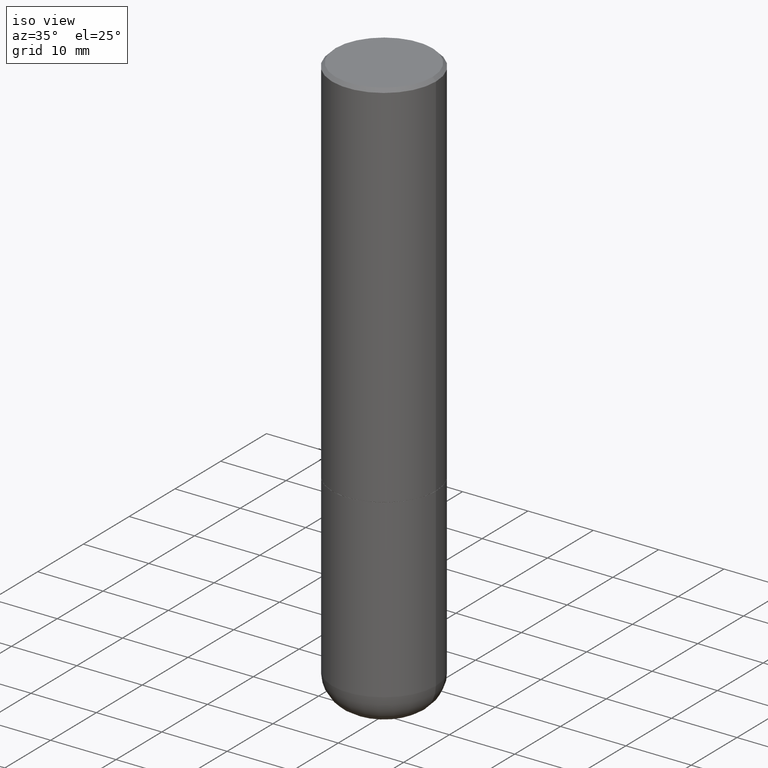
[diagram: clean part render]
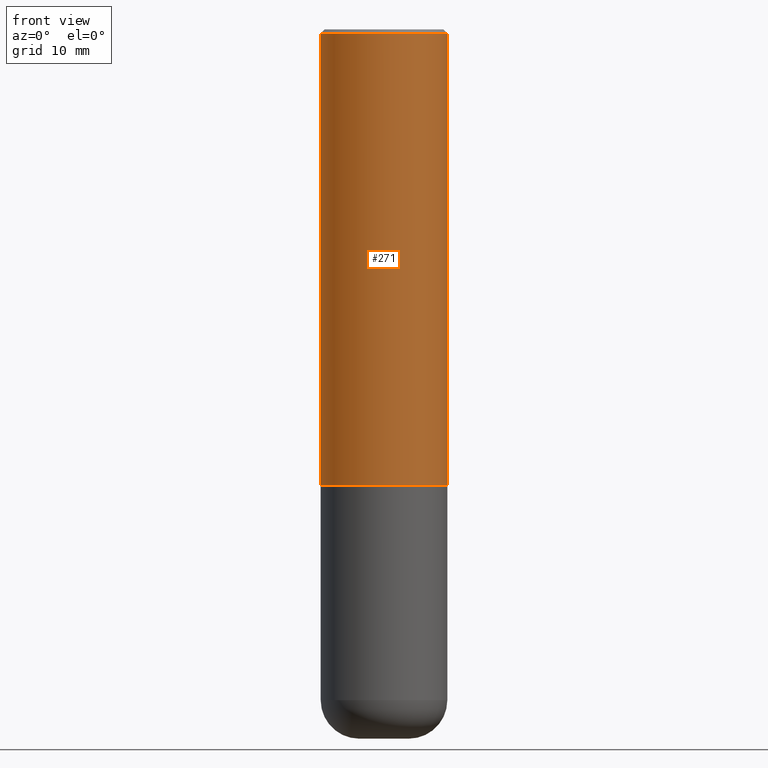
[diagram: tour spotlight — one face highlighted and labeled with its STEP entity id]
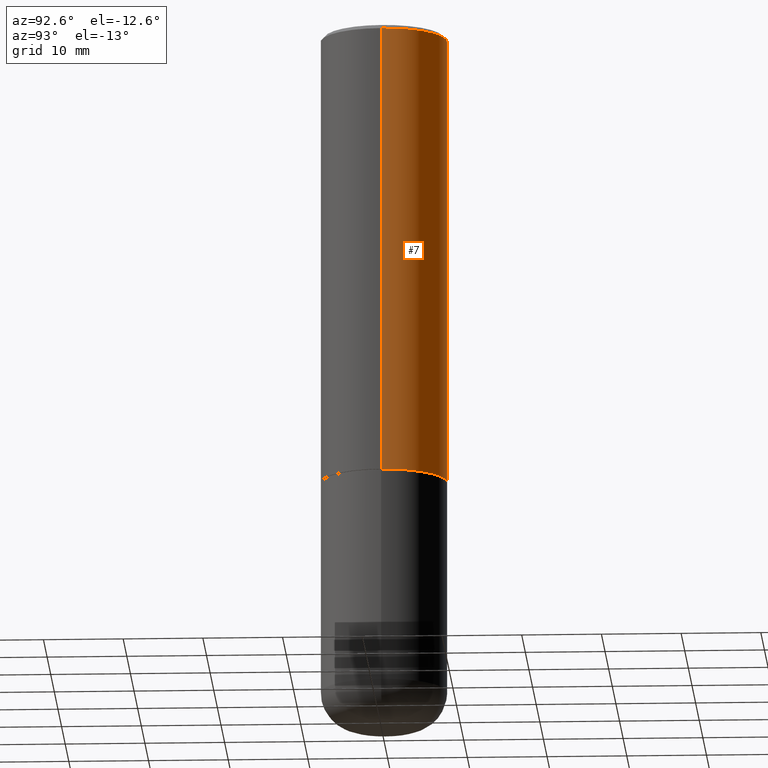
[diagram: tour spotlight — one face highlighted and labeled with its STEP entity id]
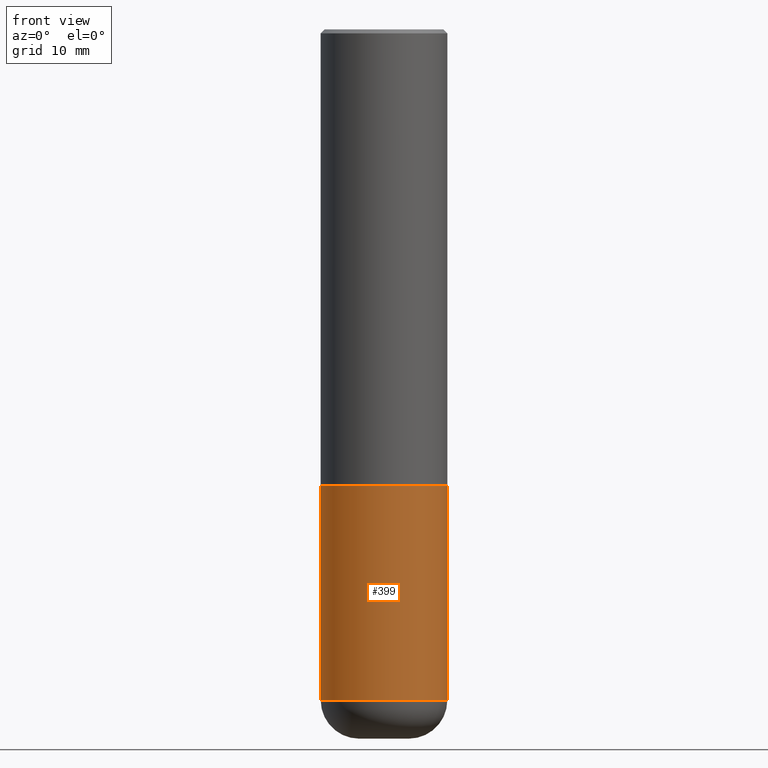
[diagram: tour spotlight — one face highlighted and labeled with its STEP entity id]
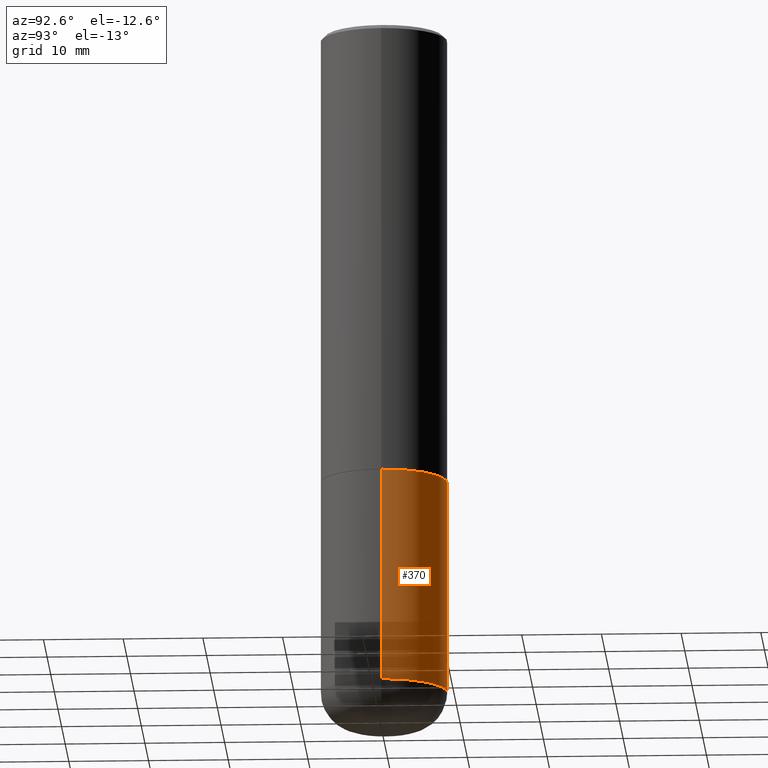
[diagram: tour spotlight — one face highlighted and labeled with its STEP entity id]
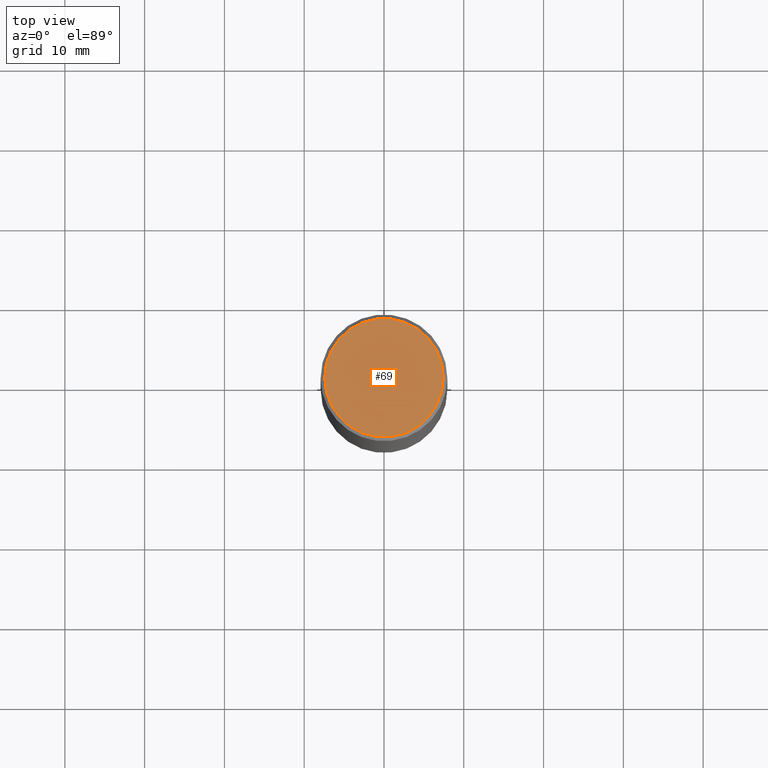
[diagram: tour spotlight — one face highlighted and labeled with its STEP entity id]
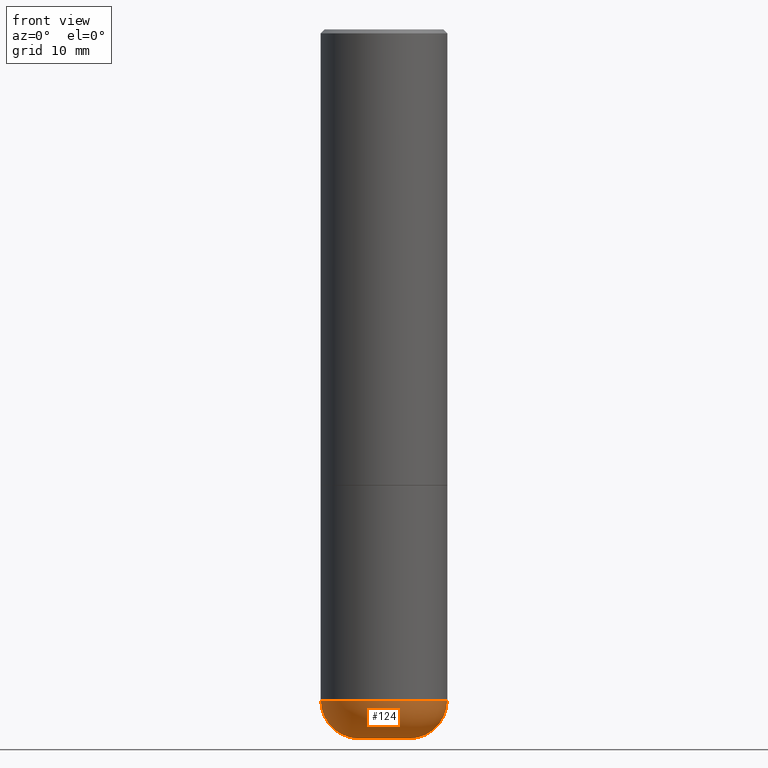
[diagram: tour spotlight — one face highlighted and labeled with its STEP entity id]
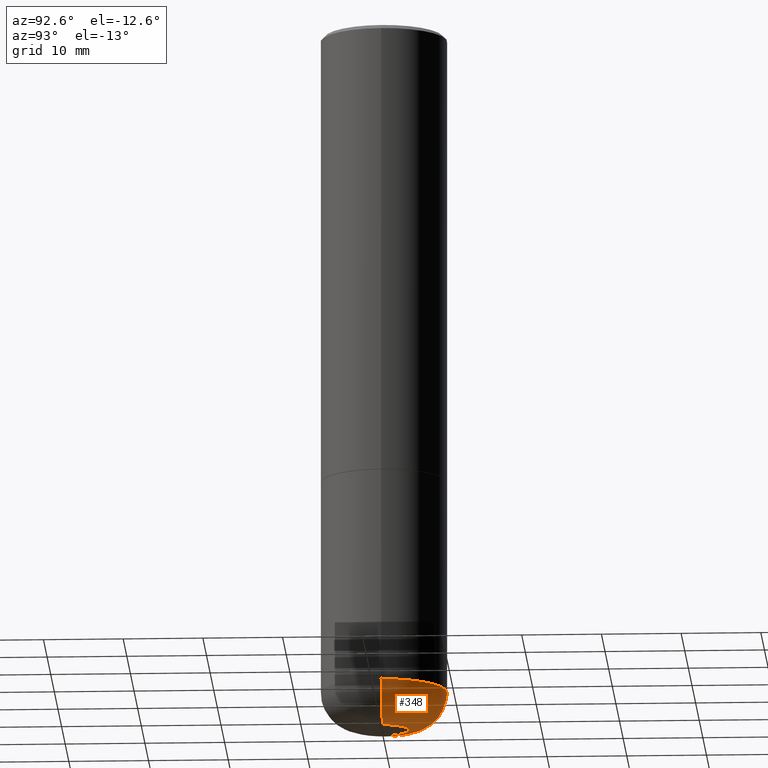
[diagram: tour spotlight — one face highlighted and labeled with its STEP entity id]
A machine part: a face-by-face anatomy tour. The part has 14 B-rep faces; the first image is the clean iso view, then the 7 largest visible faces are spotlighted one at a time (largest first), each with its STEP entity span.

Face 1 — front view, entity #271. In plain terms, the highlighted cylindrical surface (partial cylindrical patch) has radius 7.9375 mm, axis along (-0, 0, 1).
Definition (entity closure, byte-faithful):
#2 = DIRECTION ( 'NONE',  ( -2.445468806185136597E-29, 3.491481338843145583E-15, 1.000000000000000000 ) ) ;
#11 = FACE_OUTER_BOUND ( 'NONE', #78, .T. ) ;
#27 = CARTESIAN_POINT ( 'NONE',  ( 0.3125000000000002220, -1.003451736783519379E-14, -2.248999999999999666 ) ) ;
#31 = CIRCLE ( 'NONE', #144, 0.3125000000000002220 ) ;
#37 = DIRECTION ( 'NONE',  ( -2.445468806185136597E-29, 3.491481338843145583E-15, 1.000000000000000000 ) ) ;
#60 = AXIS2_PLACEMENT_3D ( 'NONE', #337, #37, #303 ) ;
#78 = EDGE_LOOP ( 'NONE', ( #122, #404, #340, #82 ) ) ;
#82 = ORIENTED_EDGE ( 'NONE', *, *, #188, .F. ) ;
#83 = LINE ( 'NONE', #220, #195 ) ;
#86 = VERTEX_POINT ( 'NONE', #199 ) ;
#114 = EDGE_CURVE ( 'NONE', #350, #119, #31, .T. ) ;
#119 = VERTEX_POINT ( 'NONE', #27 ) ;
#122 = ORIENTED_EDGE ( 'NONE', *, *, #413, .F. ) ;
#128 = CARTESIAN_POINT ( 'NONE',  ( 0.3124999999999998890, -2.213735251080466123E-15, -0.02000000000000006981 ) ) ;
#131 = CARTESIAN_POINT ( 'NONE',  ( 5.499859345110371740E-29, -7.852341531058233864E-15, -2.248999999999999666 ) ) ;
#138 = CARTESIAN_POINT ( 'NONE',  ( 0.000000000000000000, 0.000000000000000000, 0.000000000000000000 ) ) ;
#141 = CARTESIAN_POINT ( 'NONE',  ( 0.3125000000000000000, -2.182175836776958347E-15, 1.523805242436230075E-29 ) ) ;
#142 = VERTEX_POINT ( 'NONE', #128 ) ;
#144 = AXIS2_PLACEMENT_3D ( 'NONE', #131, #2, #267 ) ;
#179 = DIRECTION ( 'NONE',  ( -2.445468806185136597E-29, 3.491481338843145583E-15, 1.000000000000000000 ) ) ;
#188 = EDGE_CURVE ( 'NONE', #86, #142, #256, .T. ) ;
#195 = VECTOR ( 'NONE', #216, 39.37007874015748143 ) ;
#199 = CARTESIAN_POINT ( 'NONE',  ( -0.3124999999999998890, 2.112346210000094260E-15, -0.02000000000000006981 ) ) ;
#216 = DIRECTION ( 'NONE',  ( -2.445468806185136877E-29, 3.491481338843145188E-15, 1.000000000000000000 ) ) ;
#220 = CARTESIAN_POINT ( 'NONE',  ( -0.3125000000000000000, 2.220446049250313081E-15, -1.537167215704658232E-29 ) ) ;
#247 = CARTESIAN_POINT ( 'NONE',  ( -0.3125000000000002220, -1.740639529667230767E-15, -2.248999999999999666 ) ) ;
#256 = CIRCLE ( 'NONE', #60, 0.3124999999999998890 ) ;
#258 = VECTOR ( 'NONE', #305, 39.37007874015748143 ) ;
#267 = DIRECTION ( 'NONE',  ( 1.000000000000000000, -6.982962677686266711E-15, 0.000000000000000000 ) ) ;
#271 = ADVANCED_FACE ( 'NONE', ( #11 ), #333, .T. ) ;
#303 = DIRECTION ( 'NONE',  ( 1.000000000000000000, -6.982962677686266711E-15, 0.000000000000000000 ) ) ;
#305 = DIRECTION ( 'NONE',  ( -2.445468806185136877E-29, 3.491481338843145188E-15, 1.000000000000000000 ) ) ;
#312 = EDGE_CURVE ( 'NONE', #119, #142, #361, .T. ) ;
#333 = CYLINDRICAL_SURFACE ( 'NONE', #403, 0.3125000000000000000 ) ;
#337 = CARTESIAN_POINT ( 'NONE',  ( 4.890937612370289799E-31, -6.982962677686315028E-17, -0.02000000000000006981 ) ) ;
#340 = ORIENTED_EDGE ( 'NONE', *, *, #312, .T. ) ;
#350 = VERTEX_POINT ( 'NONE', #247 ) ;
#361 = LINE ( 'NONE', #141, #258 ) ;
#396 = DIRECTION ( 'NONE',  ( 1.000000000000000000, -6.982962677686266711E-15, 4.876176775795936353E-29 ) ) ;
#403 = AXIS2_PLACEMENT_3D ( 'NONE', #138, #179, #396 ) ;
#404 = ORIENTED_EDGE ( 'NONE', *, *, #114, .T. ) ;
#413 = EDGE_CURVE ( 'NONE', #350, #86, #83, .T. ) ;

Face 2 — auxiliary view, entity #7. In plain terms, the highlighted cylindrical surface (partial cylindrical patch) has radius 7.9375 mm, axis along (-0, 0, 1).
Definition (entity closure, byte-faithful):
#3 = EDGE_CURVE ( 'NONE', #142, #86, #51, .T. ) ;
#7 = ADVANCED_FACE ( 'NONE', ( #29 ), #354, .T. ) ;
#9 = EDGE_LOOP ( 'NONE', ( #19, #38, #222, #56 ) ) ;
#19 = ORIENTED_EDGE ( 'NONE', *, *, #265, .T. ) ;
#27 = CARTESIAN_POINT ( 'NONE',  ( 0.3125000000000002220, -1.003451736783519379E-14, -2.248999999999999666 ) ) ;
#29 = FACE_OUTER_BOUND ( 'NONE', #9, .T. ) ;
#38 = ORIENTED_EDGE ( 'NONE', *, *, #413, .T. ) ;
#51 = CIRCLE ( 'NONE', #269, 0.3124999999999998890 ) ;
#56 = ORIENTED_EDGE ( 'NONE', *, *, #312, .F. ) ;
#83 = LINE ( 'NONE', #220, #195 ) ;
#86 = VERTEX_POINT ( 'NONE', #199 ) ;
#105 = CARTESIAN_POINT ( 'NONE',  ( 5.499859345110371740E-29, -7.852341531058233864E-15, -2.248999999999999666 ) ) ;
#119 = VERTEX_POINT ( 'NONE', #27 ) ;
#128 = CARTESIAN_POINT ( 'NONE',  ( 0.3124999999999998890, -2.213735251080466123E-15, -0.02000000000000006981 ) ) ;
#141 = CARTESIAN_POINT ( 'NONE',  ( 0.3125000000000000000, -2.182175836776958347E-15, 1.523805242436230075E-29 ) ) ;
#142 = VERTEX_POINT ( 'NONE', #128 ) ;
#163 = CARTESIAN_POINT ( 'NONE',  ( 4.890937612370289799E-31, -6.982962677686315028E-17, -0.02000000000000006981 ) ) ;
#187 = AXIS2_PLACEMENT_3D ( 'NONE', #105, #268, #394 ) ;
#193 = DIRECTION ( 'NONE',  ( -2.445468806185136597E-29, 3.491481338843145583E-15, 1.000000000000000000 ) ) ;
#195 = VECTOR ( 'NONE', #216, 39.37007874015748143 ) ;
#196 = CARTESIAN_POINT ( 'NONE',  ( 0.000000000000000000, 0.000000000000000000, 0.000000000000000000 ) ) ;
#199 = CARTESIAN_POINT ( 'NONE',  ( -0.3124999999999998890, 2.112346210000094260E-15, -0.02000000000000006981 ) ) ;
#216 = DIRECTION ( 'NONE',  ( -2.445468806185136877E-29, 3.491481338843145188E-15, 1.000000000000000000 ) ) ;
#220 = CARTESIAN_POINT ( 'NONE',  ( -0.3125000000000000000, 2.220446049250313081E-15, -1.537167215704658232E-29 ) ) ;
#222 = ORIENTED_EDGE ( 'NONE', *, *, #3, .F. ) ;
#235 = DIRECTION ( 'NONE',  ( 1.000000000000000000, -6.982962677686266711E-15, 0.000000000000000000 ) ) ;
#247 = CARTESIAN_POINT ( 'NONE',  ( -0.3125000000000002220, -1.740639529667230767E-15, -2.248999999999999666 ) ) ;
#258 = VECTOR ( 'NONE', #305, 39.37007874015748143 ) ;
#265 = EDGE_CURVE ( 'NONE', #119, #350, #334, .T. ) ;
#268 = DIRECTION ( 'NONE',  ( -2.445468806185136597E-29, 3.491481338843145583E-15, 1.000000000000000000 ) ) ;
#269 = AXIS2_PLACEMENT_3D ( 'NONE', #163, #193, #235 ) ;
#305 = DIRECTION ( 'NONE',  ( -2.445468806185136877E-29, 3.491481338843145188E-15, 1.000000000000000000 ) ) ;
#312 = EDGE_CURVE ( 'NONE', #119, #142, #361, .T. ) ;
#331 = DIRECTION ( 'NONE',  ( -2.445468806185136597E-29, 3.491481338843145583E-15, 1.000000000000000000 ) ) ;
#334 = CIRCLE ( 'NONE', #187, 0.3125000000000002220 ) ;
#350 = VERTEX_POINT ( 'NONE', #247 ) ;
#354 = CYLINDRICAL_SURFACE ( 'NONE', #364, 0.3125000000000000000 ) ;
#358 = DIRECTION ( 'NONE',  ( 1.000000000000000000, -6.982962677686266711E-15, 4.876176775795936353E-29 ) ) ;
#361 = LINE ( 'NONE', #141, #258 ) ;
#364 = AXIS2_PLACEMENT_3D ( 'NONE', #196, #331, #358 ) ;
#394 = DIRECTION ( 'NONE',  ( 1.000000000000000000, -6.982962677686266711E-15, 0.000000000000000000 ) ) ;
#413 = EDGE_CURVE ( 'NONE', #350, #86, #83, .T. ) ;

Face 3 — front view, entity #399. In plain terms, the highlighted cylindrical surface (partial cylindrical patch) has radius 7.9375 mm, axis along (-0, 0, 1).
Definition (entity closure, byte-faithful):
#8 = DIRECTION ( 'NONE',  ( -2.445468806185136877E-29, 3.491481338843145188E-15, 1.000000000000000000 ) ) ;
#12 = VECTOR ( 'NONE', #136, 39.37007874015748143 ) ;
#23 = EDGE_LOOP ( 'NONE', ( #347, #257, #148, #254 ) ) ;
#34 = DIRECTION ( 'NONE',  ( -2.445468806185136597E-29, 3.491481338843145583E-15, 1.000000000000000000 ) ) ;
#41 = EDGE_CURVE ( 'NONE', #182, #218, #295, .T. ) ;
#42 = CARTESIAN_POINT ( 'NONE',  ( -0.3125000000000000000, -9.336357182320498084E-15, -3.310000000000000053 ) ) ;
#58 = CARTESIAN_POINT ( 'NONE',  ( 8.094501748472800969E-29, -1.155680323157081116E-14, -3.310000000000000053 ) ) ;
#85 = DIRECTION ( 'NONE',  ( 1.000000000000000000, -6.982962677686266711E-15, 4.876176775795936353E-29 ) ) ;
#97 = DIRECTION ( 'NONE',  ( 1.000000000000000000, -6.982962677686269077E-15, 0.000000000000000000 ) ) ;
#115 = FACE_OUTER_BOUND ( 'NONE', #23, .T. ) ;
#117 = AXIS2_PLACEMENT_3D ( 'NONE', #277, #313, #85 ) ;
#123 = CIRCLE ( 'NONE', #172, 0.3125000000000000000 ) ;
#132 = AXIS2_PLACEMENT_3D ( 'NONE', #58, #34, #161 ) ;
#136 = DIRECTION ( 'NONE',  ( -2.445468806185136877E-29, 3.491481338843145188E-15, 1.000000000000000000 ) ) ;
#147 = EDGE_CURVE ( 'NONE', #191, #342, #123, .T. ) ;
#148 = ORIENTED_EDGE ( 'NONE', *, *, #227, .T. ) ;
#159 = EDGE_CURVE ( 'NONE', #182, #191, #383, .T. ) ;
#161 = DIRECTION ( 'NONE',  ( 1.000000000000000000, -6.982962677686269077E-15, 0.000000000000000000 ) ) ;
#166 = CARTESIAN_POINT ( 'NONE',  ( -0.3125000000000000000, 2.220446049250313081E-15, -1.537167215704658232E-29 ) ) ;
#172 = AXIS2_PLACEMENT_3D ( 'NONE', #261, #298, #97 ) ;
#174 = LINE ( 'NONE', #178, #231 ) ;
#178 = CARTESIAN_POINT ( 'NONE',  ( 0.3125000000000000000, -2.182175836776958347E-15, 1.523805242436230075E-29 ) ) ;
#182 = VERTEX_POINT ( 'NONE', #42 ) ;
#191 = VERTEX_POINT ( 'NONE', #204 ) ;
#204 = CARTESIAN_POINT ( 'NONE',  ( -0.3125000000000000000, -7.485872072733631726E-15, -2.249999999999999556 ) ) ;
#218 = VERTEX_POINT ( 'NONE', #306 ) ;
#227 = EDGE_CURVE ( 'NONE', #218, #342, #174, .T. ) ;
#231 = VECTOR ( 'NONE', #8, 39.37007874015748143 ) ;
#254 = ORIENTED_EDGE ( 'NONE', *, *, #147, .F. ) ;
#257 = ORIENTED_EDGE ( 'NONE', *, *, #41, .T. ) ;
#261 = CARTESIAN_POINT ( 'NONE',  ( 5.502304813916556222E-29, -7.855833012397076871E-15, -2.249999999999999556 ) ) ;
#274 = CARTESIAN_POINT ( 'NONE',  ( 0.3125000000000000000, -1.003800884917403522E-14, -2.249999999999999556 ) ) ;
#277 = CARTESIAN_POINT ( 'NONE',  ( 0.000000000000000000, 0.000000000000000000, 0.000000000000000000 ) ) ;
#295 = CIRCLE ( 'NONE', #132, 0.3125000000000000000 ) ;
#298 = DIRECTION ( 'NONE',  ( -2.445468806185136597E-29, 3.491481338843145583E-15, 1.000000000000000000 ) ) ;
#306 = CARTESIAN_POINT ( 'NONE',  ( 0.3125000000000000000, -1.373897906834776951E-14, -3.310000000000000053 ) ) ;
#313 = DIRECTION ( 'NONE',  ( -2.445468806185136597E-29, 3.491481338843145583E-15, 1.000000000000000000 ) ) ;
#341 = CYLINDRICAL_SURFACE ( 'NONE', #117, 0.3125000000000000000 ) ;
#342 = VERTEX_POINT ( 'NONE', #274 ) ;
#347 = ORIENTED_EDGE ( 'NONE', *, *, #159, .F. ) ;
#383 = LINE ( 'NONE', #166, #12 ) ;
#399 = ADVANCED_FACE ( 'NONE', ( #115 ), #341, .T. ) ;

Face 4 — auxiliary view, entity #370. In plain terms, the highlighted cylindrical surface (partial cylindrical patch) has radius 7.9375 mm, axis along (-0, 0, 1).
Definition (entity closure, byte-faithful):
#6 = CIRCLE ( 'NONE', #236, 0.3125000000000000000 ) ;
#8 = DIRECTION ( 'NONE',  ( -2.445468806185136877E-29, 3.491481338843145188E-15, 1.000000000000000000 ) ) ;
#12 = VECTOR ( 'NONE', #136, 39.37007874015748143 ) ;
#28 = CARTESIAN_POINT ( 'NONE',  ( 8.094501748472800969E-29, -1.155680323157081116E-14, -3.310000000000000053 ) ) ;
#32 = CIRCLE ( 'NONE', #346, 0.3125000000000000000 ) ;
#40 = CARTESIAN_POINT ( 'NONE',  ( 5.502304813916556222E-29, -7.855833012397076871E-15, -2.249999999999999556 ) ) ;
#42 = CARTESIAN_POINT ( 'NONE',  ( -0.3125000000000000000, -9.336357182320498084E-15, -3.310000000000000053 ) ) ;
#43 = AXIS2_PLACEMENT_3D ( 'NONE', #375, #46, #310 ) ;
#45 = ORIENTED_EDGE ( 'NONE', *, *, #227, .F. ) ;
#46 = DIRECTION ( 'NONE',  ( -2.445468806185136597E-29, 3.491481338843145583E-15, 1.000000000000000000 ) ) ;
#50 = ORIENTED_EDGE ( 'NONE', *, *, #169, .T. ) ;
#64 = DIRECTION ( 'NONE',  ( -2.445468806185136597E-29, 3.491481338843145583E-15, 1.000000000000000000 ) ) ;
#104 = DIRECTION ( 'NONE',  ( 1.000000000000000000, -6.982962677686269077E-15, 0.000000000000000000 ) ) ;
#118 = FACE_OUTER_BOUND ( 'NONE', #184, .T. ) ;
#136 = DIRECTION ( 'NONE',  ( -2.445468806185136877E-29, 3.491481338843145188E-15, 1.000000000000000000 ) ) ;
#151 = ORIENTED_EDGE ( 'NONE', *, *, #318, .F. ) ;
#159 = EDGE_CURVE ( 'NONE', #182, #191, #383, .T. ) ;
#166 = CARTESIAN_POINT ( 'NONE',  ( -0.3125000000000000000, 2.220446049250313081E-15, -1.537167215704658232E-29 ) ) ;
#169 = EDGE_CURVE ( 'NONE', #218, #182, #6, .T. ) ;
#174 = LINE ( 'NONE', #178, #231 ) ;
#178 = CARTESIAN_POINT ( 'NONE',  ( 0.3125000000000000000, -2.182175836776958347E-15, 1.523805242436230075E-29 ) ) ;
#182 = VERTEX_POINT ( 'NONE', #42 ) ;
#184 = EDGE_LOOP ( 'NONE', ( #50, #282, #151, #45 ) ) ;
#191 = VERTEX_POINT ( 'NONE', #204 ) ;
#197 = DIRECTION ( 'NONE',  ( 1.000000000000000000, -6.982962677686269077E-15, 0.000000000000000000 ) ) ;
#204 = CARTESIAN_POINT ( 'NONE',  ( -0.3125000000000000000, -7.485872072733631726E-15, -2.249999999999999556 ) ) ;
#218 = VERTEX_POINT ( 'NONE', #306 ) ;
#227 = EDGE_CURVE ( 'NONE', #218, #342, #174, .T. ) ;
#231 = VECTOR ( 'NONE', #8, 39.37007874015748143 ) ;
#236 = AXIS2_PLACEMENT_3D ( 'NONE', #28, #64, #197 ) ;
#274 = CARTESIAN_POINT ( 'NONE',  ( 0.3125000000000000000, -1.003800884917403522E-14, -2.249999999999999556 ) ) ;
#282 = ORIENTED_EDGE ( 'NONE', *, *, #159, .T. ) ;
#306 = CARTESIAN_POINT ( 'NONE',  ( 0.3125000000000000000, -1.373897906834776951E-14, -3.310000000000000053 ) ) ;
#310 = DIRECTION ( 'NONE',  ( 1.000000000000000000, -6.982962677686266711E-15, 4.876176775795936353E-29 ) ) ;
#318 = EDGE_CURVE ( 'NONE', #342, #191, #32, .T. ) ;
#342 = VERTEX_POINT ( 'NONE', #274 ) ;
#346 = AXIS2_PLACEMENT_3D ( 'NONE', #40, #392, #104 ) ;
#370 = ADVANCED_FACE ( 'NONE', ( #118 ), #401, .T. ) ;
#375 = CARTESIAN_POINT ( 'NONE',  ( 0.000000000000000000, 0.000000000000000000, 0.000000000000000000 ) ) ;
#383 = LINE ( 'NONE', #166, #12 ) ;
#392 = DIRECTION ( 'NONE',  ( -2.445468806185136597E-29, 3.491481338843145583E-15, 1.000000000000000000 ) ) ;
#401 = CYLINDRICAL_SURFACE ( 'NONE', #43, 0.3125000000000000000 ) ;

Face 5 — top view, entity #69. In plain terms, the highlighted planar face has unit normal (0, -0, -1).
Definition (entity closure, byte-faithful):
#20 = DIRECTION ( 'NONE',  ( 1.000000000000000000, -6.982962677686266711E-15, 4.873475059489885184E-29 ) ) ;
#35 = CARTESIAN_POINT ( 'NONE',  ( -7.098189617479493761E-45, 1.013433355858703998E-30, 2.902588493268279793E-16 ) ) ;
#44 = DIRECTION ( 'NONE',  ( -2.445468806185136597E-29, 3.491481338843145583E-15, 1.000000000000000000 ) ) ;
#69 = ADVANCED_FACE ( 'NONE', ( #158 ), #415, .F. ) ;
#101 = AXIS2_PLACEMENT_3D ( 'NONE', #264, #323, #299 ) ;
#107 = DIRECTION ( 'NONE',  ( 1.000000000000000000, -6.982962677686266711E-15, 4.873475059489885184E-29 ) ) ;
#140 = AXIS2_PLACEMENT_3D ( 'NONE', #35, #245, #107 ) ;
#158 = FACE_OUTER_BOUND ( 'NONE', #402, .T. ) ;
#165 = CIRCLE ( 'NONE', #397, 0.2924999999999994826 ) ;
#215 = ORIENTED_EDGE ( 'NONE', *, *, #389, .T. ) ;
#239 = CARTESIAN_POINT ( 'NONE',  ( -0.2924999999999994826, 2.077431396611662611E-15, 2.902588493268135826E-16 ) ) ;
#245 = DIRECTION ( 'NONE',  ( -2.445468806185136597E-29, 3.491481338843145583E-15, 1.000000000000000000 ) ) ;
#264 = CARTESIAN_POINT ( 'NONE',  ( 2.042516583223229384E-15, 0.2924999999999994826, -8.761288669482044248E-16 ) ) ;
#275 = CARTESIAN_POINT ( 'NONE',  ( 0.2924999999999994826, -2.110215457714317564E-15, 2.902588493268424746E-16 ) ) ;
#276 = EDGE_CURVE ( 'NONE', #319, #287, #322, .T. ) ;
#287 = VERTEX_POINT ( 'NONE', #275 ) ;
#299 = DIRECTION ( 'NONE',  ( -1.000000000000000000, 6.982962677686265922E-15, -4.876176775795935793E-29 ) ) ;
#319 = VERTEX_POINT ( 'NONE', #239 ) ;
#322 = CIRCLE ( 'NONE', #140, 0.2924999999999994826 ) ;
#323 = DIRECTION ( 'NONE',  ( 2.438088387897960049E-29, -3.491481338843145188E-15, -1.000000000000000000 ) ) ;
#371 = CARTESIAN_POINT ( 'NONE',  ( -7.098189617479493761E-45, 1.013433355858703998E-30, 2.902588493268279793E-16 ) ) ;
#374 = ORIENTED_EDGE ( 'NONE', *, *, #276, .T. ) ;
#389 = EDGE_CURVE ( 'NONE', #287, #319, #165, .T. ) ;
#397 = AXIS2_PLACEMENT_3D ( 'NONE', #371, #44, #20 ) ;
#402 = EDGE_LOOP ( 'NONE', ( #374, #215 ) ) ;
#415 = PLANE ( 'NONE',  #101 ) ;

Face 6 — front view, entity #124. In plain terms, the highlighted toroidal blend (fillet) surface has major radius 3.1115 mm and minor (blend) radius 4.826 mm.
Definition (entity closure, byte-faithful):
#10 = CARTESIAN_POINT ( 'NONE',  ( -0.1225000000000000394, -1.034306350848269295E-14, -3.500000000000000000 ) ) ;
#33 = DIRECTION ( 'NONE',  ( -2.445468806185136597E-29, 3.491481338843145583E-15, 1.000000000000000000 ) ) ;
#34 = DIRECTION ( 'NONE',  ( -2.445468806185136597E-29, 3.491481338843145583E-15, 1.000000000000000000 ) ) ;
#41 = EDGE_CURVE ( 'NONE', #182, #218, #295, .T. ) ;
#42 = CARTESIAN_POINT ( 'NONE',  ( -0.3125000000000000000, -9.336357182320498084E-15, -3.310000000000000053 ) ) ;
#47 = ORIENTED_EDGE ( 'NONE', *, *, #100, .F. ) ;
#58 = CARTESIAN_POINT ( 'NONE',  ( 8.094501748472800969E-29, -1.155680323157081116E-14, -3.310000000000000053 ) ) ;
#66 = CARTESIAN_POINT ( 'NONE',  ( -0.1225000000000000255, -1.068638838026468806E-14, -3.310000000000000053 ) ) ;
#90 = EDGE_CURVE ( 'NONE', #217, #218, #345, .T. ) ;
#93 = TOROIDAL_SURFACE ( 'NONE', #377, 0.1225000000000000255, 0.1899999999999999467 ) ;
#99 = CARTESIAN_POINT ( 'NONE',  ( 8.094501748472800969E-29, -1.155680323157081116E-14, -3.310000000000000053 ) ) ;
#100 = EDGE_CURVE ( 'NONE', #316, #182, #207, .T. ) ;
#109 = EDGE_LOOP ( 'NONE', ( #47, #372, #278, #409 ) ) ;
#120 = DIRECTION ( 'NONE',  ( -2.445468806185136597E-29, 3.491481338843145583E-15, 1.000000000000000000 ) ) ;
#124 = ADVANCED_FACE ( 'NONE', ( #134 ), #93, .T. ) ;
#132 = AXIS2_PLACEMENT_3D ( 'NONE', #58, #34, #161 ) ;
#134 = FACE_OUTER_BOUND ( 'NONE', #109, .T. ) ;
#161 = DIRECTION ( 'NONE',  ( 1.000000000000000000, -6.982962677686269077E-15, 0.000000000000000000 ) ) ;
#180 = CARTESIAN_POINT ( 'NONE',  ( 0.1225000000000000394, -1.307559761396757607E-14, -3.500000000000000000 ) ) ;
#182 = VERTEX_POINT ( 'NONE', #42 ) ;
#207 = CIRCLE ( 'NONE', #410, 0.1899999999999999745 ) ;
#217 = VERTEX_POINT ( 'NONE', #180 ) ;
#218 = VERTEX_POINT ( 'NONE', #306 ) ;
#221 = AXIS2_PLACEMENT_3D ( 'NONE', #380, #228, #233 ) ;
#223 = CIRCLE ( 'NONE', #302, 0.1225000000000000394 ) ;
#228 = DIRECTION ( 'NONE',  ( -6.982962677686266711E-15, -1.000000000000000000, 3.491481338843145583E-15 ) ) ;
#233 = DIRECTION ( 'NONE',  ( 1.000000000000000000, -6.982962677686261977E-15, 0.000000000000000000 ) ) ;
#249 = DIRECTION ( 'NONE',  ( 1.000000000000000000, -6.982962677686263555E-15, 0.000000000000000000 ) ) ;
#278 = ORIENTED_EDGE ( 'NONE', *, *, #90, .T. ) ;
#295 = CIRCLE ( 'NONE', #132, 0.3125000000000000000 ) ;
#302 = AXIS2_PLACEMENT_3D ( 'NONE', #408, #120, #249 ) ;
#306 = CARTESIAN_POINT ( 'NONE',  ( 0.3125000000000000000, -1.373897906834776951E-14, -3.310000000000000053 ) ) ;
#316 = VERTEX_POINT ( 'NONE', #10 ) ;
#321 = DIRECTION ( 'NONE',  ( 7.105427357601001859E-15, 1.000000000000000000, -3.491481338843145583E-15 ) ) ;
#345 = CIRCLE ( 'NONE', #221, 0.1899999999999999745 ) ;
#372 = ORIENTED_EDGE ( 'NONE', *, *, #406, .T. ) ;
#377 = AXIS2_PLACEMENT_3D ( 'NONE', #99, #33, #414 ) ;
#380 = CARTESIAN_POINT ( 'NONE',  ( 0.1225000000000000255, -1.241221615958737947E-14, -3.310000000000000053 ) ) ;
#385 = DIRECTION ( 'NONE',  ( -1.000000000000000000, 7.105427357600998703E-15, 0.000000000000000000 ) ) ;
#406 = EDGE_CURVE ( 'NONE', #316, #217, #223, .T. ) ;
#408 = CARTESIAN_POINT ( 'NONE',  ( 8.559140821647976968E-29, -1.222018468595100934E-14, -3.500000000000000000 ) ) ;
#409 = ORIENTED_EDGE ( 'NONE', *, *, #41, .F. ) ;
#410 = AXIS2_PLACEMENT_3D ( 'NONE', #66, #321, #385 ) ;
#414 = DIRECTION ( 'NONE',  ( 1.000000000000000000, -6.982962677686269077E-15, 4.883557194083114022E-29 ) ) ;

Face 7 — auxiliary view, entity #348. In plain terms, the highlighted toroidal blend (fillet) surface has major radius 3.1115 mm and minor (blend) radius 4.826 mm.
Definition (entity closure, byte-faithful):
#6 = CIRCLE ( 'NONE', #236, 0.3125000000000000000 ) ;
#10 = CARTESIAN_POINT ( 'NONE',  ( -0.1225000000000000394, -1.034306350848269295E-14, -3.500000000000000000 ) ) ;
#28 = CARTESIAN_POINT ( 'NONE',  ( 8.094501748472800969E-29, -1.155680323157081116E-14, -3.310000000000000053 ) ) ;
#42 = CARTESIAN_POINT ( 'NONE',  ( -0.3125000000000000000, -9.336357182320498084E-15, -3.310000000000000053 ) ) ;
#53 = ORIENTED_EDGE ( 'NONE', *, *, #90, .F. ) ;
#64 = DIRECTION ( 'NONE',  ( -2.445468806185136597E-29, 3.491481338843145583E-15, 1.000000000000000000 ) ) ;
#66 = CARTESIAN_POINT ( 'NONE',  ( -0.1225000000000000255, -1.068638838026468806E-14, -3.310000000000000053 ) ) ;
#75 = CARTESIAN_POINT ( 'NONE',  ( 8.559140821647976968E-29, -1.222018468595100934E-14, -3.500000000000000000 ) ) ;
#87 = TOROIDAL_SURFACE ( 'NONE', #208, 0.1225000000000000255, 0.1899999999999999467 ) ;
#90 = EDGE_CURVE ( 'NONE', #217, #218, #345, .T. ) ;
#100 = EDGE_CURVE ( 'NONE', #316, #182, #207, .T. ) ;
#108 = AXIS2_PLACEMENT_3D ( 'NONE', #75, #272, #238 ) ;
#125 = CIRCLE ( 'NONE', #108, 0.1225000000000000394 ) ;
#150 = ORIENTED_EDGE ( 'NONE', *, *, #100, .T. ) ;
#152 = CARTESIAN_POINT ( 'NONE',  ( 8.094501748472800969E-29, -1.155680323157081116E-14, -3.310000000000000053 ) ) ;
#169 = EDGE_CURVE ( 'NONE', #218, #182, #6, .T. ) ;
#180 = CARTESIAN_POINT ( 'NONE',  ( 0.1225000000000000394, -1.307559761396757607E-14, -3.500000000000000000 ) ) ;
#182 = VERTEX_POINT ( 'NONE', #42 ) ;
#197 = DIRECTION ( 'NONE',  ( 1.000000000000000000, -6.982962677686269077E-15, 0.000000000000000000 ) ) ;
#207 = CIRCLE ( 'NONE', #410, 0.1899999999999999745 ) ;
#208 = AXIS2_PLACEMENT_3D ( 'NONE', #152, #224, #343 ) ;
#217 = VERTEX_POINT ( 'NONE', #180 ) ;
#218 = VERTEX_POINT ( 'NONE', #306 ) ;
#221 = AXIS2_PLACEMENT_3D ( 'NONE', #380, #228, #233 ) ;
#224 = DIRECTION ( 'NONE',  ( -2.445468806185136597E-29, 3.491481338843145583E-15, 1.000000000000000000 ) ) ;
#228 = DIRECTION ( 'NONE',  ( -6.982962677686266711E-15, -1.000000000000000000, 3.491481338843145583E-15 ) ) ;
#233 = DIRECTION ( 'NONE',  ( 1.000000000000000000, -6.982962677686261977E-15, 0.000000000000000000 ) ) ;
#236 = AXIS2_PLACEMENT_3D ( 'NONE', #28, #64, #197 ) ;
#238 = DIRECTION ( 'NONE',  ( 1.000000000000000000, -6.982962677686263555E-15, 0.000000000000000000 ) ) ;
#253 = ORIENTED_EDGE ( 'NONE', *, *, #169, .F. ) ;
#260 = ORIENTED_EDGE ( 'NONE', *, *, #300, .T. ) ;
#272 = DIRECTION ( 'NONE',  ( -2.445468806185136597E-29, 3.491481338843145583E-15, 1.000000000000000000 ) ) ;
#300 = EDGE_CURVE ( 'NONE', #217, #316, #125, .T. ) ;
#306 = CARTESIAN_POINT ( 'NONE',  ( 0.3125000000000000000, -1.373897906834776951E-14, -3.310000000000000053 ) ) ;
#316 = VERTEX_POINT ( 'NONE', #10 ) ;
#321 = DIRECTION ( 'NONE',  ( 7.105427357601001859E-15, 1.000000000000000000, -3.491481338843145583E-15 ) ) ;
#343 = DIRECTION ( 'NONE',  ( 1.000000000000000000, -6.982962677686269077E-15, 4.883557194083114022E-29 ) ) ;
#345 = CIRCLE ( 'NONE', #221, 0.1899999999999999745 ) ;
#348 = ADVANCED_FACE ( 'NONE', ( #367 ), #87, .T. ) ;
#367 = FACE_OUTER_BOUND ( 'NONE', #379, .T. ) ;
#379 = EDGE_LOOP ( 'NONE', ( #260, #150, #253, #53 ) ) ;
#380 = CARTESIAN_POINT ( 'NONE',  ( 0.1225000000000000255, -1.241221615958737947E-14, -3.310000000000000053 ) ) ;
#385 = DIRECTION ( 'NONE',  ( -1.000000000000000000, 7.105427357600998703E-15, 0.000000000000000000 ) ) ;
#410 = AXIS2_PLACEMENT_3D ( 'NONE', #66, #321, #385 ) ;